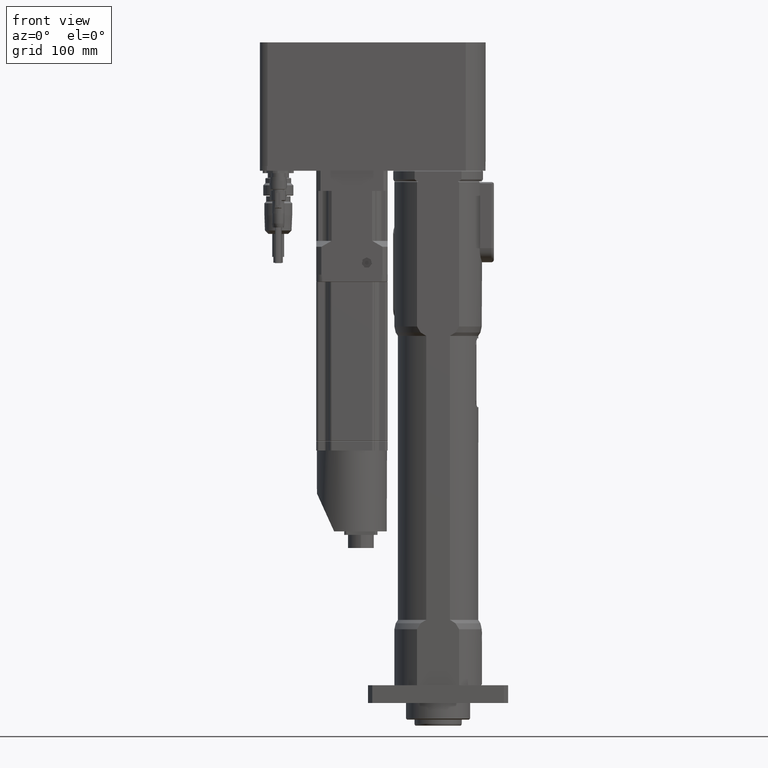
[diagram: clean part render]
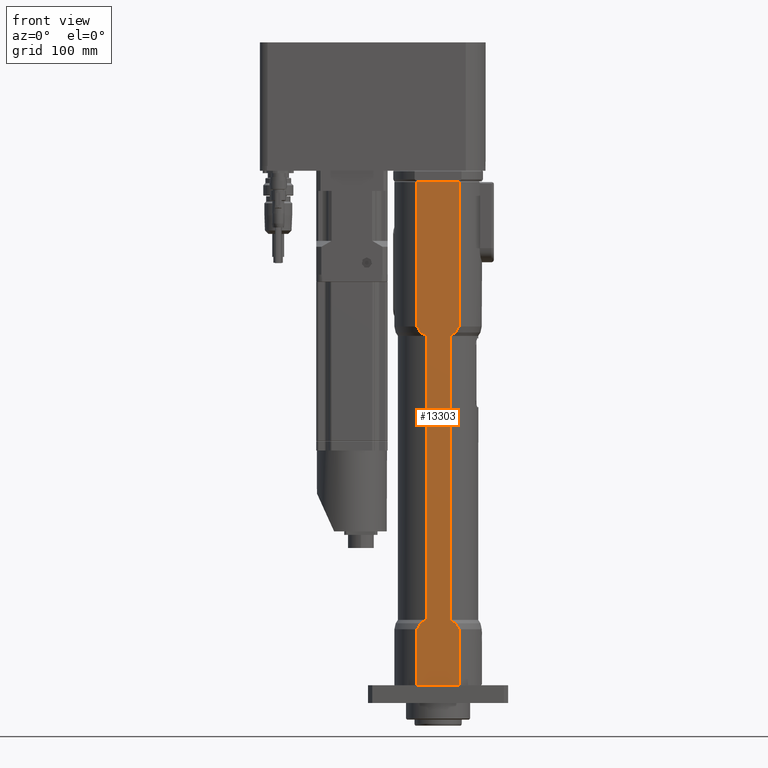
[diagram: same view with one face highlighted and labeled with its STEP entity id]
A machine part, front view. The second image highlights one B-rep face of the part: STEP entity #13303.
In plain terms, the highlighted planar face has unit normal (-0, 1, 0).
Its self-contained STEP definition (entity closure, byte-faithful):
#35=(
BOUNDED_CURVE()
B_SPLINE_CURVE(2,(#24307,#24308,#24309),.UNSPECIFIED.,.F.,.F.)
B_SPLINE_CURVE_WITH_KNOTS((3,3),(0.,0.576215523955919),.UNSPECIFIED.)
CURVE()
GEOMETRIC_REPRESENTATION_ITEM()
RATIONAL_B_SPLINE_CURVE((1.,1.00367307526795,1.00279504952126))
REPRESENTATION_ITEM('')
);
#36=(
BOUNDED_CURVE()
B_SPLINE_CURVE(2,(#24314,#24315,#24316),.UNSPECIFIED.,.F.,.F.)
B_SPLINE_CURVE_WITH_KNOTS((3,3),(0.353881603416723,0.930097127372635),
 .UNSPECIFIED.)
CURVE()
GEOMETRIC_REPRESENTATION_ITEM()
RATIONAL_B_SPLINE_CURVE((1.00279504952131,1.00367307526802,1.))
REPRESENTATION_ITEM('')
);
#38=(
BOUNDED_CURVE()
B_SPLINE_CURVE(2,(#24325,#24326,#24327),.UNSPECIFIED.,.F.,.F.)
B_SPLINE_CURVE_WITH_KNOTS((3,3),(0.353881603416707,0.930097127372629),
 .UNSPECIFIED.)
CURVE()
GEOMETRIC_REPRESENTATION_ITEM()
RATIONAL_B_SPLINE_CURVE((1.00279504952128,1.00367307526798,1.))
REPRESENTATION_ITEM('')
);
#41=(
BOUNDED_CURVE()
B_SPLINE_CURVE(2,(#24402,#24403,#24404),.UNSPECIFIED.,.F.,.F.)
B_SPLINE_CURVE_WITH_KNOTS((3,3),(0.,0.118242318995179),.UNSPECIFIED.)
CURVE()
GEOMETRIC_REPRESENTATION_ITEM()
RATIONAL_B_SPLINE_CURVE((1.,1.0001062776453,1.))
REPRESENTATION_ITEM('')
);
#43=(
BOUNDED_CURVE()
B_SPLINE_CURVE(2,(#24525,#24526,#24527),.UNSPECIFIED.,.F.,.F.)
B_SPLINE_CURVE_WITH_KNOTS((3,3),(0.,0.118242318995179),.UNSPECIFIED.)
CURVE()
GEOMETRIC_REPRESENTATION_ITEM()
RATIONAL_B_SPLINE_CURVE((1.,1.00010627764487,1.))
REPRESENTATION_ITEM('')
);
#47=(
BOUNDED_CURVE()
B_SPLINE_CURVE(2,(#24785,#24786,#24787),.UNSPECIFIED.,.F.,.F.)
B_SPLINE_CURVE_WITH_KNOTS((3,3),(0.,0.576215523955913),.UNSPECIFIED.)
CURVE()
GEOMETRIC_REPRESENTATION_ITEM()
RATIONAL_B_SPLINE_CURVE((1.,1.00367307526789,1.00279504952121))
REPRESENTATION_ITEM('')
);
#903=LINE('',#24246,#1838);
#907=LINE('',#24337,#1842);
#908=LINE('',#24344,#1843);
#913=LINE('',#24412,#1848);
#978=LINE('',#24752,#1913);
#979=LINE('',#24827,#1914);
#980=LINE('',#24829,#1915);
#981=LINE('',#24842,#1916);
#1838=VECTOR('',#17709,239.);
#1842=VECTOR('',#17735,239.);
#1843=VECTOR('',#17742,121.624355652982);
#1848=VECTOR('',#17757,35.3694783676547);
#1913=VECTOR('',#17994,121.624355652982);
#1914=VECTOR('',#18005,47.1243556529821);
#1915=VECTOR('',#18006,47.1243556529821);
#1916=VECTOR('',#18007,33.2264954516722);
#2271=B_SPLINE_CURVE_WITH_KNOTS('',3,(#24754,#24755,#24756,#24757,#24758,
#24759,#24760,#24761,#24762,#24763,#24764,#24765),.UNSPECIFIED.,.F.,.F.,
(4,2,2,2,2,4),(2.01667579410161,2.11019952768416,2.20372326126671,2.31927452154419,
2.43482578182166,2.58917653189829),.UNSPECIFIED.);
#2274=B_SPLINE_CURVE_WITH_KNOTS('',3,(#24801,#24802,#24803,#24804,#24805,
#24806,#24807,#24808,#24809,#24810,#24811,#24812),.UNSPECIFIED.,.F.,.F.,
(4,2,2,2,2,4),(5.47752664450818,5.6318773945848,5.74742865486227,5.86297991513974,
5.95650364872229,6.05002738230484),.UNSPECIFIED.);
#2275=B_SPLINE_CURVE_WITH_KNOTS('',3,(#24815,#24816,#24817,#24818,#24819,
#24820,#24821,#24822,#24823,#24824,#24825,#24826),.UNSPECIFIED.,.F.,.F.,
(4,2,2,2,2,4),(2.01667579410161,2.11019952768416,2.20372326126671,2.31927452154419,
2.43482578182166,2.58917653189829),.UNSPECIFIED.);
#2276=B_SPLINE_CURVE_WITH_KNOTS('',3,(#24830,#24831,#24832,#24833,#24834,
#24835,#24836,#24837,#24838,#24839,#24840,#24841),.UNSPECIFIED.,.F.,.F.,
(4,2,2,2,2,4),(5.47752664450817,5.6318773945848,5.74742865486227,5.86297991513975,
5.9565036487223,6.05002738230485),.UNSPECIFIED.);
#2574=PLANE('',#14632);
#3458=FACE_OUTER_BOUND('',#4391,.T.);
#4391=EDGE_LOOP('',(#10896,#10897,#10898,#10899,#10900,#10901,#10902,#10903,
#10904,#10905,#10906,#10907,#10908,#10909,#10910,#10911,#10912,#10913));
#6095=VERTEX_POINT('',#24243);
#6096=VERTEX_POINT('',#24245);
#6106=VERTEX_POINT('',#24302);
#6107=VERTEX_POINT('',#24311);
#6109=VERTEX_POINT('',#24321);
#6111=VERTEX_POINT('',#24324);
#6114=VERTEX_POINT('',#24336);
#6115=VERTEX_POINT('',#24340);
#6117=VERTEX_POINT('',#24343);
#6126=VERTEX_POINT('',#24401);
#6128=VERTEX_POINT('',#24409);
#6129=VERTEX_POINT('',#24411);
#6139=VERTEX_POINT('',#24522);
#6140=VERTEX_POINT('',#24524);
#6202=VERTEX_POINT('',#24749);
#6204=VERTEX_POINT('',#24780);
#6205=VERTEX_POINT('',#24814);
#6206=VERTEX_POINT('',#24828);
#7683=EDGE_CURVE('',#6095,#6096,#903,.T.);
#7695=EDGE_CURVE('',#6096,#6106,#35,.T.);
#7697=EDGE_CURVE('',#6107,#6095,#36,.T.);
#7700=EDGE_CURVE('',#6109,#6111,#38,.T.);
#7704=EDGE_CURVE('',#6111,#6114,#907,.T.);
#7707=EDGE_CURVE('',#6115,#6117,#908,.T.);
#7717=EDGE_CURVE('',#6117,#6126,#41,.T.);
#7721=EDGE_CURVE('',#6129,#6128,#913,.T.);
#7734=EDGE_CURVE('',#6139,#6140,#43,.T.);
#7829=EDGE_CURVE('',#6140,#6202,#978,.T.);
#7830=EDGE_CURVE('',#6202,#6107,#2271,.T.);
#7834=EDGE_CURVE('',#6114,#6204,#47,.T.);
#7836=EDGE_CURVE('',#6204,#6115,#2274,.T.);
#7837=EDGE_CURVE('',#6205,#6109,#2275,.T.);
#7838=EDGE_CURVE('',#6129,#6205,#979,.T.);
#7839=EDGE_CURVE('',#6206,#6128,#980,.T.);
#7840=EDGE_CURVE('',#6106,#6206,#2276,.T.);
#7841=EDGE_CURVE('',#6126,#6139,#981,.T.);
#10896=ORIENTED_EDGE('',*,*,#7837,.F.);
#10897=ORIENTED_EDGE('',*,*,#7838,.F.);
#10898=ORIENTED_EDGE('',*,*,#7721,.T.);
#10899=ORIENTED_EDGE('',*,*,#7839,.F.);
#10900=ORIENTED_EDGE('',*,*,#7840,.F.);
#10901=ORIENTED_EDGE('',*,*,#7695,.F.);
#10902=ORIENTED_EDGE('',*,*,#7683,.F.);
#10903=ORIENTED_EDGE('',*,*,#7697,.F.);
#10904=ORIENTED_EDGE('',*,*,#7830,.F.);
#10905=ORIENTED_EDGE('',*,*,#7829,.F.);
#10906=ORIENTED_EDGE('',*,*,#7734,.F.);
#10907=ORIENTED_EDGE('',*,*,#7841,.F.);
#10908=ORIENTED_EDGE('',*,*,#7717,.F.);
#10909=ORIENTED_EDGE('',*,*,#7707,.F.);
#10910=ORIENTED_EDGE('',*,*,#7836,.F.);
#10911=ORIENTED_EDGE('',*,*,#7834,.F.);
#10912=ORIENTED_EDGE('',*,*,#7704,.F.);
#10913=ORIENTED_EDGE('',*,*,#7700,.F.);
#13303=ADVANCED_FACE('',(#3458),#2574,.F.);
#14632=AXIS2_PLACEMENT_3D('',#24813,#18003,#18004);
#17709=DIRECTION('',(0.,0.,-1.));
#17735=DIRECTION('',(0.,0.,1.));
#17742=DIRECTION('',(0.,0.,1.));
#17757=DIRECTION('',(1.,3.7667155158515E-16,0.));
#17994=DIRECTION('',(0.,0.,-1.));
#18003=DIRECTION('center_axis',(-3.7667155158515E-16,1.,0.));
#18004=DIRECTION('ref_axis',(1.,7.105427357601E-16,0.));
#18005=DIRECTION('',(0.,0.,1.));
#18006=DIRECTION('',(0.,0.,-1.));
#18007=DIRECTION('',(1.,3.7667155158515E-16,0.));
#24243=CARTESIAN_POINT('',(9.98749217771903,-32.5,323.));
#24245=CARTESIAN_POINT('',(9.98749217771903,-32.5,84.));
#24246=CARTESIAN_POINT('',(9.98749217771903,-32.5,84.));
#24302=CARTESIAN_POINT('',(14.6766385130791,-32.5,81.1243556529821));
#24307=CARTESIAN_POINT('Ctrl Pts',(9.98749217771909,-32.5,84.));
#24308=CARTESIAN_POINT('Ctrl Pts',(12.2761857463016,-32.5,82.8355366835427));
#24309=CARTESIAN_POINT('Ctrl Pts',(14.6766385130791,-32.5,81.1243556529821));
#24311=CARTESIAN_POINT('',(14.676638513079,-32.5,325.875644347018));
#24314=CARTESIAN_POINT('Ctrl Pts',(14.676638513079,-32.5,325.875644347018));
#24315=CARTESIAN_POINT('Ctrl Pts',(12.2761857463017,-32.5,324.164463316457));
#24316=CARTESIAN_POINT('Ctrl Pts',(9.98749217771903,-32.5,323.));
#24321=CARTESIAN_POINT('',(-14.6766385130791,-32.5,81.1243556529821));
#24324=CARTESIAN_POINT('',(-9.98749217771901,-32.5,84.));
#24325=CARTESIAN_POINT('Ctrl Pts',(-14.6766385130791,-32.5,81.1243556529821));
#24326=CARTESIAN_POINT('Ctrl Pts',(-12.2761857463017,-32.5,82.8355366835427));
#24327=CARTESIAN_POINT('Ctrl Pts',(-9.98749217771906,-32.5,84.));
#24336=CARTESIAN_POINT('',(-9.98749217771901,-32.5,323.));
#24337=CARTESIAN_POINT('',(-9.98749217771901,-32.5,84.));
#24340=CARTESIAN_POINT('',(-17.6847391838273,-32.5,330.875644347018));
#24343=CARTESIAN_POINT('',(-17.6847391838273,-32.5,452.5));
#24344=CARTESIAN_POINT('',(-17.6847391838273,-32.5,323.));
#24401=CARTESIAN_POINT('',(-16.6132477258361,-32.5,453.));
#24402=CARTESIAN_POINT('Ctrl Pts',(-17.6847391838273,-32.5,452.5));
#24403=CARTESIAN_POINT('Ctrl Pts',(-17.1453489260635,-32.5,452.757810162888));
#24404=CARTESIAN_POINT('Ctrl Pts',(-16.6132477258361,-32.5,453.));
#24409=CARTESIAN_POINT('',(17.6847391838273,-32.5,29.));
#24411=CARTESIAN_POINT('',(-17.6847391838273,-32.5,29.));
#24412=CARTESIAN_POINT('',(-8.84236959191366,-32.5,29.));
#24522=CARTESIAN_POINT('',(16.6132477258361,-32.5,453.));
#24524=CARTESIAN_POINT('',(17.6847391838273,-32.5,452.5));
#24525=CARTESIAN_POINT('Ctrl Pts',(16.6132477258361,-32.5,453.));
#24526=CARTESIAN_POINT('Ctrl Pts',(17.1453489260635,-32.5,452.757810162888));
#24527=CARTESIAN_POINT('Ctrl Pts',(17.6847391838274,-32.5,452.5));
#24749=CARTESIAN_POINT('',(17.6847391838274,-32.5,330.875644347018));
#24752=CARTESIAN_POINT('',(17.6847391838274,-32.5,323.));
#24754=CARTESIAN_POINT('Ctrl Pts',(17.6847391838274,-32.5,330.875644347018));
#24755=CARTESIAN_POINT('Ctrl Pts',(17.6847391838274,-32.5,330.563898568409));
#24756=CARTESIAN_POINT('Ctrl Pts',(17.6520388109704,-32.5,330.22378033379));
#24757=CARTESIAN_POINT('Ctrl Pts',(17.5136642759605,-32.5,329.558297565693));
#24758=CARTESIAN_POINT('Ctrl Pts',(17.4082522420596,-32.5,329.232878554539));
#24759=CARTESIAN_POINT('Ctrl Pts',(17.1389797491901,-32.5,328.590083768986));
#24760=CARTESIAN_POINT('Ctrl Pts',(16.9367000043007,-32.5,328.219940833598));
#24761=CARTESIAN_POINT('Ctrl Pts',(16.4600383226333,-32.5,327.527725706132));
#24762=CARTESIAN_POINT('Ctrl Pts',(16.1863206548294,-32.5,327.205196331039));
#24763=CARTESIAN_POINT('Ctrl Pts',(15.5578029830018,-32.5,326.561474570482));
#24764=CARTESIAN_POINT('Ctrl Pts',(15.1333436641394,-32.5,326.20121009106));
#24765=CARTESIAN_POINT('Ctrl Pts',(14.676638513079,-32.5,325.875644347018));
#24780=CARTESIAN_POINT('',(-14.6766385130791,-32.5,325.875644347018));
#24785=CARTESIAN_POINT('Ctrl Pts',(-9.98749217771901,-32.5,323.));
#24786=CARTESIAN_POINT('Ctrl Pts',(-12.2761857463015,-32.5,324.164463316457));
#24787=CARTESIAN_POINT('Ctrl Pts',(-14.6766385130791,-32.5,325.875644347018));
#24801=CARTESIAN_POINT('Ctrl Pts',(-14.676638513079,-32.5,325.875644347018));
#24802=CARTESIAN_POINT('Ctrl Pts',(-15.1333436641394,-32.5,326.20121009106));
#24803=CARTESIAN_POINT('Ctrl Pts',(-15.5578029830018,-32.5,326.561474570482));
#24804=CARTESIAN_POINT('Ctrl Pts',(-16.1863206548294,-32.5,327.205196331039));
#24805=CARTESIAN_POINT('Ctrl Pts',(-16.4600383226334,-32.5,327.527725706132));
#24806=CARTESIAN_POINT('Ctrl Pts',(-16.9367000043007,-32.5,328.219940833598));
#24807=CARTESIAN_POINT('Ctrl Pts',(-17.1389797491901,-32.5,328.590083768986));
#24808=CARTESIAN_POINT('Ctrl Pts',(-17.4082522420596,-32.5,329.232878554539));
#24809=CARTESIAN_POINT('Ctrl Pts',(-17.5136642759605,-32.5,329.558297565693));
#24810=CARTESIAN_POINT('Ctrl Pts',(-17.6520388109704,-32.5,330.22378033379));
#24811=CARTESIAN_POINT('Ctrl Pts',(-17.6847391838273,-32.5,330.563898568409));
#24812=CARTESIAN_POINT('Ctrl Pts',(-17.6847391838273,-32.5,330.875644347018));
#24813=CARTESIAN_POINT('Origin',(-17.6847391838273,-32.5,453.));
#24814=CARTESIAN_POINT('',(-17.6847391838274,-32.5,76.1243556529821));
#24815=CARTESIAN_POINT('Ctrl Pts',(-17.6847391838274,-32.5,76.1243556529821));
#24816=CARTESIAN_POINT('Ctrl Pts',(-17.6847391838274,-32.5,76.4361014315906));
#24817=CARTESIAN_POINT('Ctrl Pts',(-17.6520388109704,-32.5,76.7762196662102));
#24818=CARTESIAN_POINT('Ctrl Pts',(-17.5136642759605,-32.5,77.4417024343069));
#24819=CARTESIAN_POINT('Ctrl Pts',(-17.4082522420596,-32.5,77.7671214454609));
#24820=CARTESIAN_POINT('Ctrl Pts',(-17.1389797491901,-32.5,78.4099162310142));
#24821=CARTESIAN_POINT('Ctrl Pts',(-16.9367000043008,-32.5,78.780059166402));
#24822=CARTESIAN_POINT('Ctrl Pts',(-16.4600383226334,-32.5,79.4722742938682));
#24823=CARTESIAN_POINT('Ctrl Pts',(-16.1863206548294,-32.5,79.7948036689614));
#24824=CARTESIAN_POINT('Ctrl Pts',(-15.5578029830018,-32.5,80.4385254295176));
#24825=CARTESIAN_POINT('Ctrl Pts',(-15.1333436641395,-32.5,80.79878990894));
#24826=CARTESIAN_POINT('Ctrl Pts',(-14.6766385130791,-32.5,81.1243556529821));
#24827=CARTESIAN_POINT('',(-17.6847391838274,-32.5,29.));
#24828=CARTESIAN_POINT('',(17.6847391838274,-32.5,76.1243556529821));
#24829=CARTESIAN_POINT('',(17.6847391838274,-32.5,29.));
#24830=CARTESIAN_POINT('Ctrl Pts',(14.6766385130791,-32.5,81.1243556529821));
#24831=CARTESIAN_POINT('Ctrl Pts',(15.1333436641395,-32.5,80.79878990894));
#24832=CARTESIAN_POINT('Ctrl Pts',(15.5578029830018,-32.5,80.4385254295176));
#24833=CARTESIAN_POINT('Ctrl Pts',(16.1863206548294,-32.5,79.7948036689615));
#24834=CARTESIAN_POINT('Ctrl Pts',(16.4600383226334,-32.5,79.4722742938682));
#24835=CARTESIAN_POINT('Ctrl Pts',(16.9367000043008,-32.5,78.780059166402));
#24836=CARTESIAN_POINT('Ctrl Pts',(17.1389797491901,-32.5,78.4099162310142));
#24837=CARTESIAN_POINT('Ctrl Pts',(17.4082522420596,-32.5,77.7671214454609));
#24838=CARTESIAN_POINT('Ctrl Pts',(17.5136642759605,-32.5,77.4417024343069));
#24839=CARTESIAN_POINT('Ctrl Pts',(17.6520388109705,-32.5,76.7762196662102));
#24840=CARTESIAN_POINT('Ctrl Pts',(17.6847391838274,-32.5,76.4361014315906));
#24841=CARTESIAN_POINT('Ctrl Pts',(17.6847391838274,-32.5,76.1243556529821));
#24842=CARTESIAN_POINT('',(-8.84236959191367,-32.5,453.));